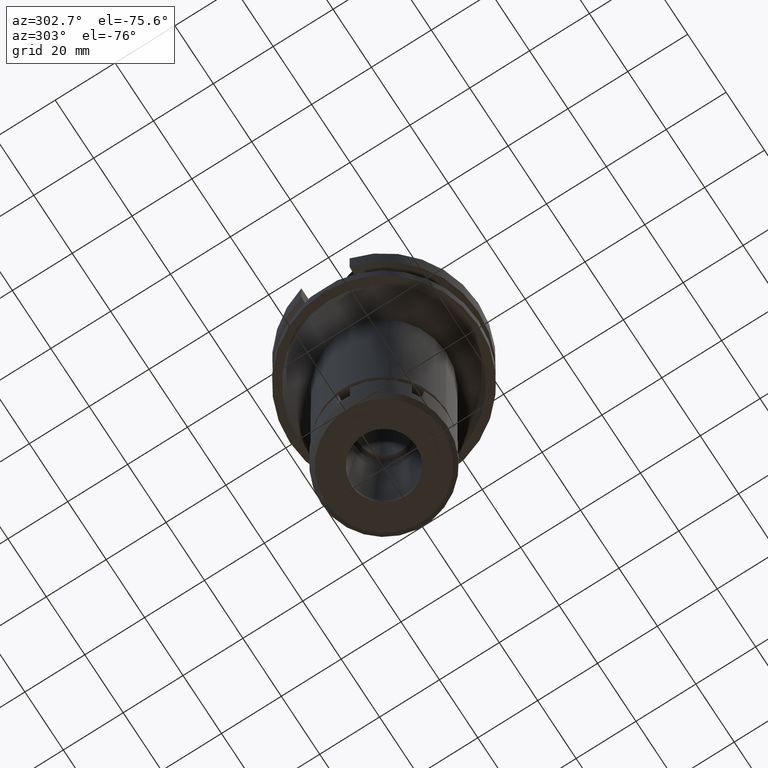
[diagram: clean part render]
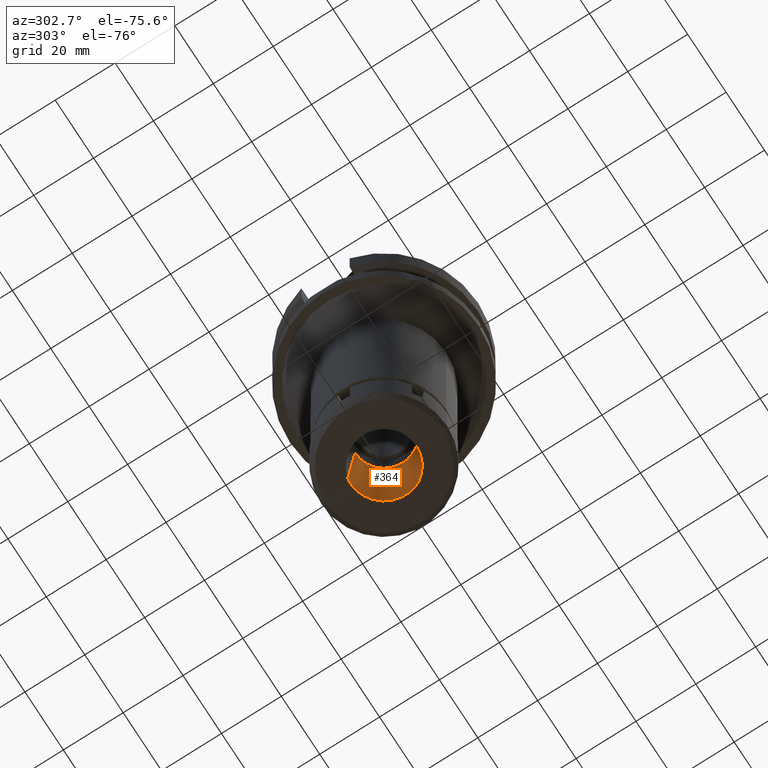
[diagram: same view with one face highlighted and labeled with its STEP entity id]
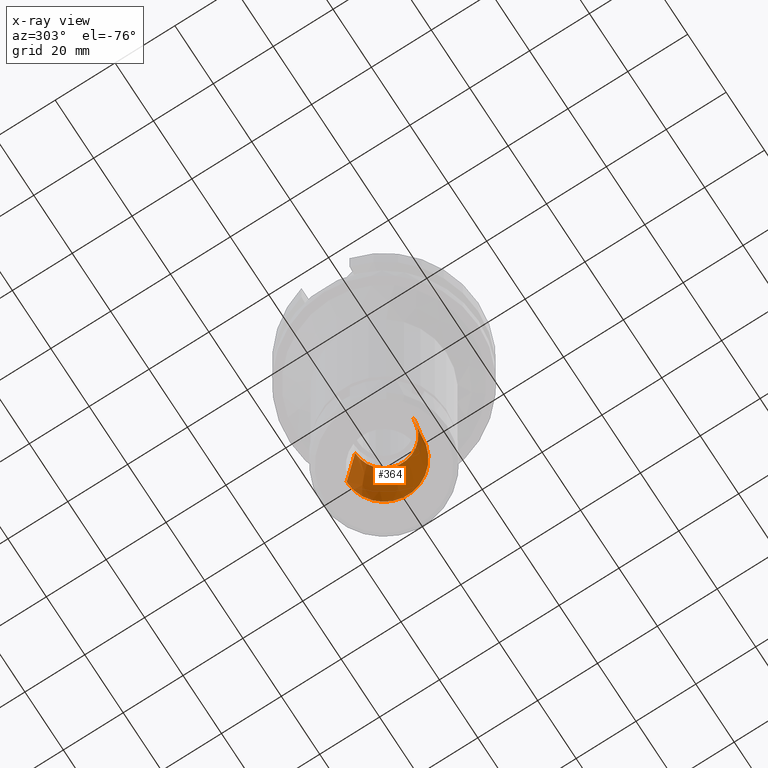
[diagram: x-ray of the same camera — body ghosted, the highlighted face saturated]
A machine part, auxiliary view. The second image highlights one B-rep face of the part: STEP entity #364.
The next image is the same camera in x-ray: the body ghosted, the highlighted face saturated — about 3% of this face is hidden behind the body in this view.
In plain terms, the highlighted conical surface has half-angle 6 deg.
Its self-contained STEP definition (entity closure, byte-faithful):
#49 = CARTESIAN_POINT ( 'NONE',  ( 0.0000000000000000000, 0.0000000000000000000, -85.00000000000000000 ) ) ;
#80 = ORIENTED_EDGE ( 'NONE', *, *, #849, .F. ) ;
#108 = VECTOR ( 'NONE', #1062, 1000.000000000000227 ) ;
#188 = LINE ( 'NONE', #762, #108 ) ;
#193 = DIRECTION ( 'NONE',  ( 0.0000000000000000000, -1.000000000000000000, 0.0000000000000000000 ) ) ;
#228 = EDGE_CURVE ( 'NONE', #2078, #2531, #450, .T. ) ;
#364 = ADVANCED_FACE ( 'NONE', ( #2685 ), #2867, .F. ) ;
#450 = CIRCLE ( 'NONE', #1503, 9.662185647822997936 ) ;
#667 = VERTEX_POINT ( 'NONE', #2217 ) ;
#733 = VERTEX_POINT ( 'NONE', #2298 ) ;
#762 = CARTESIAN_POINT ( 'NONE',  ( 0.0000000000000000000, -12.50000000000000000, -112.0000000000000000 ) ) ;
#788 = EDGE_CURVE ( 'NONE', #667, #733, #2050, .T. ) ;
#849 = EDGE_CURVE ( 'NONE', #667, #2531, #1737, .T. ) ;
#855 = AXIS2_PLACEMENT_3D ( 'NONE', #2137, #2175, #193 ) ;
#1062 = DIRECTION ( 'NONE',  ( 0.0000000000000000000, 0.1045284632676965891, 0.9945218953682687379 ) ) ;
#1496 = DIRECTION ( 'NONE',  ( 0.0000000000000000000, 0.0000000000000000000, -1.000000000000000000 ) ) ;
#1500 = DIRECTION ( 'NONE',  ( 0.0000000000000000000, 0.0000000000000000000, 1.000000000000000000 ) ) ;
#1503 = AXIS2_PLACEMENT_3D ( 'NONE', #49, #1500, #2634 ) ;
#1570 = VECTOR ( 'NONE', #2869, 1000.000000000000227 ) ;
#1721 = CARTESIAN_POINT ( 'NONE',  ( 0.0000000000000000000, 12.50000000000000000, -112.0000000000000000 ) ) ;
#1737 = LINE ( 'NONE', #1721, #1570 ) ;
#1777 = CARTESIAN_POINT ( 'NONE',  ( 0.0000000000000000000, 0.0000000000000000000, -112.0000000000000000 ) ) ;
#1827 = ORIENTED_EDGE ( 'NONE', *, *, #228, .T. ) ;
#2025 = EDGE_LOOP ( 'NONE', ( #2200, #2443, #1827, #80 ) ) ;
#2050 = CIRCLE ( 'NONE', #3150, 12.50000000000000000 ) ;
#2078 = VERTEX_POINT ( 'NONE', #2653 ) ;
#2137 = CARTESIAN_POINT ( 'NONE',  ( 0.0000000000000000000, 0.0000000000000000000, -98.50000000000000000 ) ) ;
#2175 = DIRECTION ( 'NONE',  ( 0.0000000000000000000, 0.0000000000000000000, -1.000000000000000000 ) ) ;
#2200 = ORIENTED_EDGE ( 'NONE', *, *, #788, .T. ) ;
#2217 = CARTESIAN_POINT ( 'NONE',  ( 0.0000000000000000000, 12.50000000000000000, -112.0000000000000000 ) ) ;
#2298 = CARTESIAN_POINT ( 'NONE',  ( 0.0000000000000000000, -12.50000000000000000, -112.0000000000000000 ) ) ;
#2443 = ORIENTED_EDGE ( 'NONE', *, *, #3288, .T. ) ;
#2531 = VERTEX_POINT ( 'NONE', #2884 ) ;
#2626 = DIRECTION ( 'NONE',  ( 0.0000000000000000000, 1.000000000000000000, 0.0000000000000000000 ) ) ;
#2634 = DIRECTION ( 'NONE',  ( 0.0000000000000000000, -1.000000000000000000, 0.0000000000000000000 ) ) ;
#2653 = CARTESIAN_POINT ( 'NONE',  ( 0.0000000000000000000, -9.662185647822997936, -85.00000000000000000 ) ) ;
#2685 = FACE_OUTER_BOUND ( 'NONE', #2025, .T. ) ;
#2867 = CONICAL_SURFACE ( 'NONE', #855, 11.08109282390999972, 0.1047197551196402399 ) ;
#2869 = DIRECTION ( 'NONE',  ( 0.0000000000000000000, -0.1045284632676965891, 0.9945218953682687379 ) ) ;
#2884 = CARTESIAN_POINT ( 'NONE',  ( 0.0000000000000000000, 9.662185647822997936, -85.00000000000000000 ) ) ;
#3150 = AXIS2_PLACEMENT_3D ( 'NONE', #1777, #1496, #2626 ) ;
#3288 = EDGE_CURVE ( 'NONE', #733, #2078, #188, .T. ) ;